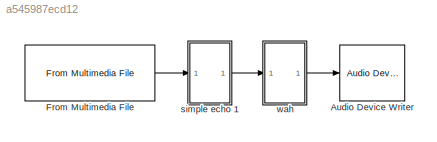
MODEL slx_a545987ecd12
KIND model
CONFIG AbsTol = auto
CONFIG EnableMultiTasking = off
CONFIG FixedStep = auto
CONFIG MaxStep = auto
CONFIG MinStep = auto
CONFIG RelTol = 1e-3
CONFIG SampleTimeConstraint = Unconstrained
CONFIG Solver = VariableStepAuto
CONFIG SolverName = VariableStepAuto
CONFIG StartTime = 0.0
CONFIG StopTime = 10.0
BLOCK [Reference] Audio Device Writer  REF=dspsnks4/Audio Device
Writer
  Ports = [1]
  SourceBlock = dspsnks4/Audio Device\nWriter
  SourceProductBaseCode = DS
  SourceProductName = DSP System Toolbox
  SourceType = Audio Device Writer
BLOCK [Reference] From Multimedia File  REF=dspvision/From Multimedia File
  Ports = [0, 1]
  SourceBlock = dspvision/From Multimedia File
  SourceProductBaseCode = VP
  SourceProductName = Computer Vision System Toolbox
  SourceType = From Multimedia File
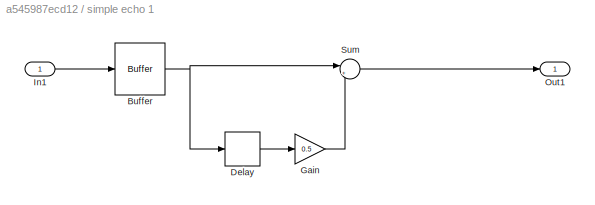
BLOCK [SubSystem] simple echo 1
  Ports = [1, 1]
  RequestExecContextInheritance = off
BLOCK [Buffer] simple echo 1/Buffer
  N = 128
  OutputFrames = off
BLOCK [Delay] simple echo 1/Delay
  DelayLength = 44100
  InitialCondition = 0
  InputPortMap = u0
  InputProcessing = Columns as channels (frame based)
  Ports = [1, 1]
BLOCK [Gain] simple echo 1/Gain
  Gain = 0.5
  OutDataTypeStr = Inherit: Inherit via internal rule
  ParamDataTypeStr = Inherit: Inherit via internal rule
  SaturateOnIntegerOverflow = off
BLOCK [Inport] simple echo 1/In1
  IconDisplay = Port number
BLOCK [Outport] simple echo 1/Out1
  IconDisplay = Port number
BLOCK [Sum] simple echo 1/Sum
  IconShape = round
  InputSameDT = off
  Inputs = |++
  OutDataTypeStr = Inherit: Inherit via internal rule
  Ports = [2, 1]
  SaturateOnIntegerOverflow = off
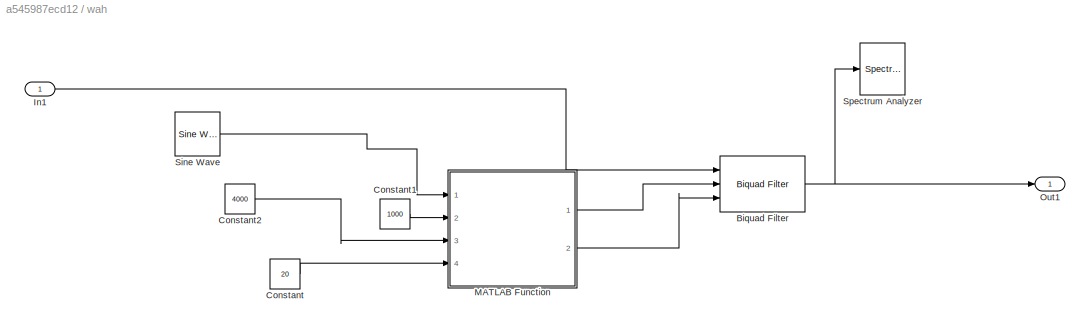
BLOCK [SubSystem] wah
  Ports = [1, 1]
  RequestExecContextInheritance = off
BLOCK [Reference] wah/Biquad Filter  REF=dsparch4/Biquad Filter
  Ports = [3, 1]
  SourceBlock = dsparch4/Biquad Filter
  SourceProductBaseCode = DS
  SourceProductName = DSP System Toolbox
  SourceType = Biquad Filter
  UserDataPersistent = on
BLOCK [Constant] wah/Constant
  Value = 20
BLOCK [Constant] wah/Constant1
  Value = 1000
BLOCK [Constant] wah/Constant2
  Value = 4000
BLOCK [Inport] wah/In1
  IconDisplay = Port number
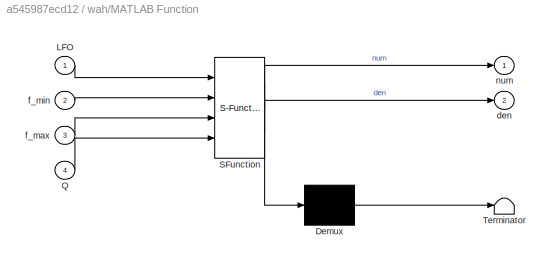
BLOCK [SubSystem] wah/MATLAB Function
  ErrorFcn = Stateflow.Translate.translate
  PermitHierarchicalResolution = ExplicitOnly
  Ports = [4, 2]
  RequestExecContextInheritance = off
  SFBlockType = MATLAB Function
  TreatAsAtomicUnit = on
BLOCK [Demux] wah/MATLAB Function/ Demux 
  Outputs = 1
  Ports = [1, 1]
BLOCK [S-Function] wah/MATLAB Function/ SFunction 
  EnableBusSupport = on
  FunctionName = sf_sfun
  PortCounts = [4 3]
  Ports = [4, 3]
  SFcnIsStateOwnerBlock = off
  SFunctionDeploymentMode = off
  Tag = Stateflow S-Function effect_echo 2
BLOCK [Terminator] wah/MATLAB Function/ Terminator 
BLOCK [Inport] wah/MATLAB Function/LFO
  IconDisplay = Port number
BLOCK [Inport] wah/MATLAB Function/Q
  IconDisplay = Port number
  Port = 4
BLOCK [Outport] wah/MATLAB Function/den
  IconDisplay = Port number
  Port = 2
BLOCK [Inport] wah/MATLAB Function/f_max
  IconDisplay = Port number
  Port = 3
BLOCK [Inport] wah/MATLAB Function/f_min
  IconDisplay = Port number
  Port = 2
BLOCK [Outport] wah/MATLAB Function/num
  IconDisplay = Port number
BLOCK [Outport] wah/Out1
  IconDisplay = Port number
BLOCK [Reference] wah/Sine Wave  REF=dspsrcs4/Sine Wave
  Ports = [0, 1]
  SourceBlock = dspsrcs4/Sine Wave
  SourceProductBaseCode = DS
  SourceProductName = DSP System Toolbox
  SourceType = Sine Wave
BLOCK [SpectrumAnalyzer] wah/Spectrum Analyzer
  Ports = [1]
  ScopeSpecificationString = spbscopes.SpectrumAnalyzerBlockCfg('CurrentConfiguration', extmgr.ConfigurationSet(extmgr.Configuration('Core','General UI',true),extmgr.Configuration('Core','Source UI',true),extmgr.Configuration('Sources','WiredSimulink',true),extmgr.Configuration('Visuals','Spectrum',true,'AxesProperties',struct('Color',{[0 0 0],[0 0 0]},'XColor',{[0.686274509803922 0.686274509803922 0.686274509803922],[0.68627...<+2043ch>
LINE From Multimedia File:1 -> simple echo 1:1
NET simple echo 1/Buffer:1 -> simple echo 1/Delay:1, simple echo 1/Sum:1
LINE simple echo 1/Delay:1 -> simple echo 1/Gain:1
LINE simple echo 1/Gain:1 -> simple echo 1/Sum:2
LINE simple echo 1/In1:1 -> simple echo 1/Buffer:1
LINE simple echo 1/Sum:1 -> simple echo 1/Out1:1
LINE simple echo 1:1 -> wah:1
NET wah/Biquad Filter:1 -> wah/Out1:1, wah/Spectrum Analyzer:1
LINE wah/Constant1:1 -> wah/MATLAB Function:2
LINE wah/Constant2:1 -> wah/MATLAB Function:3
LINE wah/Constant:1 -> wah/MATLAB Function:4
LINE wah/In1:1 -> wah/Biquad Filter:1
LINE wah/MATLAB Function:1 -> wah/Biquad Filter:2
LINE wah/MATLAB Function:2 -> wah/Biquad Filter:3
LINE wah/Sine Wave:1 -> wah/MATLAB Function:1
LINE wah:1 -> Audio Device Writer:1
note: NET lines group one-source signal fan-out (src -> all destinations, sorted); 1:1 wires keep LINE
CHART wah/MATLAB Function states=1 transitions=1
  STATE_LABEL 'eML_blk_kernel()'
  STATE_LABEL "SCRIPT:\nfunction [num,den]  = iirNotchLFO(LFO, f_min, f_max, Q)\nFs = 44100;\nf = 0.5*(f_max-f_min)*double(LFO)+(f_min+f_max)/2; % Shift/Scale Triangle wave\nBW = pi*f/(Fs*Q);\nWo = f*pi/Fs;\ngain = 1/(1+sqrt(1/2).*tan(BW/2));\nnum  = (1-gain)*[1 0 -1]';\nden  = [-2*gain*cos(Wo) (2*gain-1)]';\nend"
